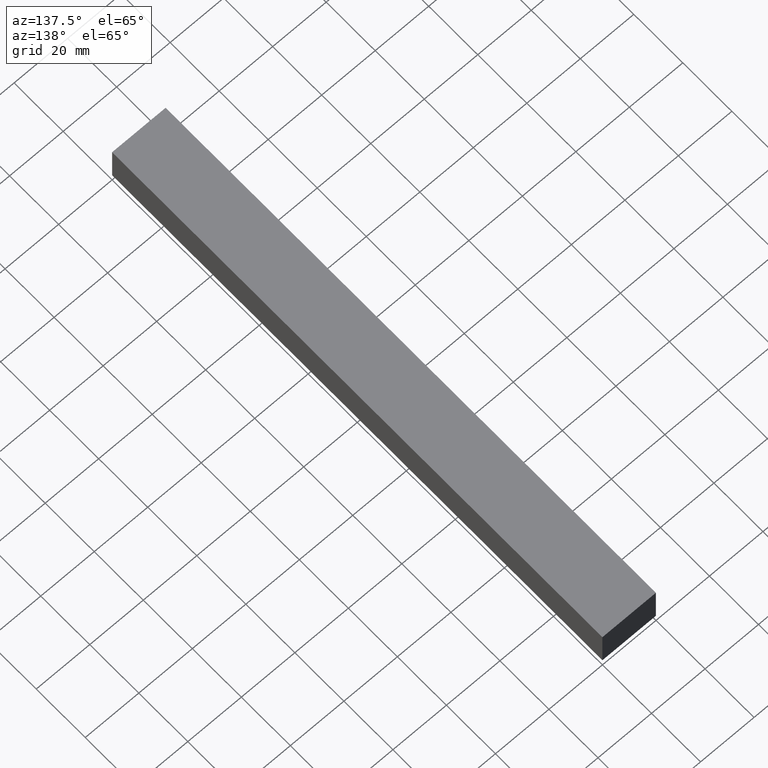
[diagram: clean part render]
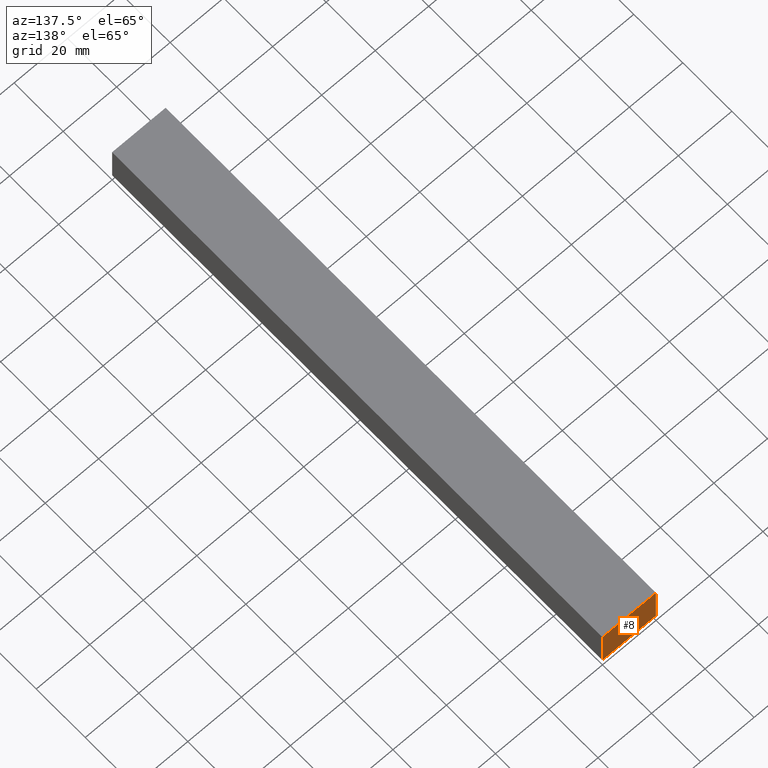
[diagram: same view with one face highlighted and labeled with its STEP entity id]
A machine part, auxiliary view. The second image highlights one B-rep face of the part: STEP entity #8.
In plain terms, the highlighted planar face has unit normal (0, 1, 0).
Its self-contained STEP definition (entity closure, byte-faithful):
#1 = ORIENTED_EDGE ( 'NONE', *, *, #221, .T. ) ;
#8 = ADVANCED_FACE ( 'NONE', ( #199 ), #57, .T. ) ;
#13 = CARTESIAN_POINT ( 'NONE',  ( 0.0000000000000000000, 200.0000000000000000, 0.0000000000000000000 ) ) ;
#14 = LINE ( 'NONE', #97, #113 ) ;
#25 = VECTOR ( 'NONE', #71, 1000.000000000000000 ) ;
#31 = ORIENTED_EDGE ( 'NONE', *, *, #238, .T. ) ;
#57 = PLANE ( 'NONE',  #226 ) ;
#59 = LINE ( 'NONE', #61, #188 ) ;
#61 = CARTESIAN_POINT ( 'NONE',  ( 0.0000000000000000000, 200.0000000000000000, 15.00000000000000000 ) ) ;
#64 = CARTESIAN_POINT ( 'NONE',  ( 20.00000000000000000, 200.0000000000000000, 15.00000000000000000 ) ) ;
#71 = DIRECTION ( 'NONE',  ( 0.0000000000000000000, 0.0000000000000000000, -1.000000000000000000 ) ) ;
#78 = CARTESIAN_POINT ( 'NONE',  ( 0.0000000000000000000, 200.0000000000000000, 0.0000000000000000000 ) ) ;
#88 = LINE ( 'NONE', #214, #156 ) ;
#95 = DIRECTION ( 'NONE',  ( -1.000000000000000000, 0.0000000000000000000, 0.0000000000000000000 ) ) ;
#97 = CARTESIAN_POINT ( 'NONE',  ( 0.0000000000000000000, 200.0000000000000000, 0.0000000000000000000 ) ) ;
#103 = EDGE_CURVE ( 'NONE', #167, #158, #88, .T. ) ;
#111 = DIRECTION ( 'NONE',  ( 1.000000000000000000, 0.0000000000000000000, 0.0000000000000000000 ) ) ;
#113 = VECTOR ( 'NONE', #135, 1000.000000000000000 ) ;
#121 = EDGE_LOOP ( 'NONE', ( #31, #1, #205, #155 ) ) ;
#135 = DIRECTION ( 'NONE',  ( 0.0000000000000000000, 0.0000000000000000000, 1.000000000000000000 ) ) ;
#140 = VERTEX_POINT ( 'NONE', #64 ) ;
#155 = ORIENTED_EDGE ( 'NONE', *, *, #229, .T. ) ;
#156 = VECTOR ( 'NONE', #95, 1000.000000000000000 ) ;
#157 = VERTEX_POINT ( 'NONE', #235 ) ;
#158 = VERTEX_POINT ( 'NONE', #78 ) ;
#167 = VERTEX_POINT ( 'NONE', #195 ) ;
#186 = DIRECTION ( 'NONE',  ( 1.000000000000000000, 0.0000000000000000000, 0.0000000000000000000 ) ) ;
#187 = DIRECTION ( 'NONE',  ( -0.0000000000000000000, 1.000000000000000000, 0.0000000000000000000 ) ) ;
#188 = VECTOR ( 'NONE', #111, 1000.000000000000000 ) ;
#190 = LINE ( 'NONE', #196, #25 ) ;
#195 = CARTESIAN_POINT ( 'NONE',  ( 20.00000000000000000, 200.0000000000000000, 0.0000000000000000000 ) ) ;
#196 = CARTESIAN_POINT ( 'NONE',  ( 20.00000000000000000, 200.0000000000000000, 15.00000000000000000 ) ) ;
#199 = FACE_OUTER_BOUND ( 'NONE', #121, .T. ) ;
#205 = ORIENTED_EDGE ( 'NONE', *, *, #103, .T. ) ;
#214 = CARTESIAN_POINT ( 'NONE',  ( 20.00000000000000000, 200.0000000000000000, 0.0000000000000000000 ) ) ;
#221 = EDGE_CURVE ( 'NONE', #140, #167, #190, .T. ) ;
#226 = AXIS2_PLACEMENT_3D ( 'NONE', #13, #187, #186 ) ;
#229 = EDGE_CURVE ( 'NONE', #158, #157, #14, .T. ) ;
#235 = CARTESIAN_POINT ( 'NONE',  ( 0.0000000000000000000, 200.0000000000000000, 15.00000000000000000 ) ) ;
#238 = EDGE_CURVE ( 'NONE', #157, #140, #59, .T. ) ;